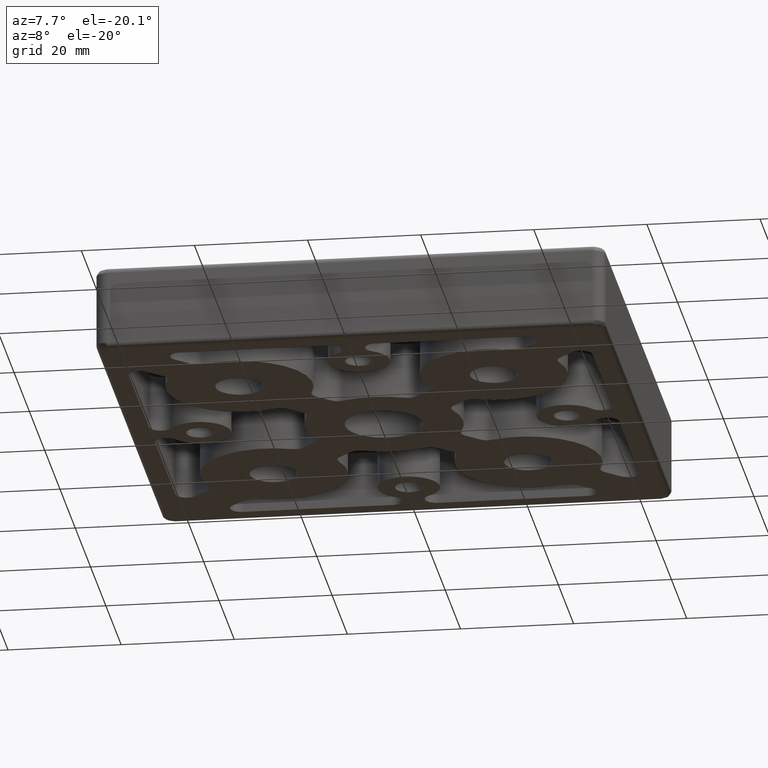
[diagram: clean part render]
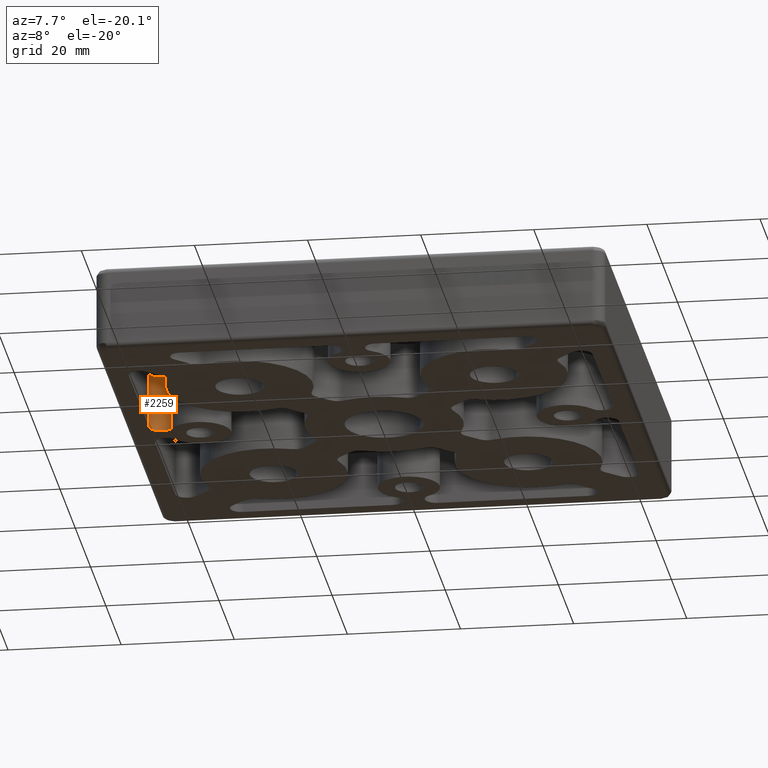
[diagram: same view with one face highlighted and labeled with its STEP entity id]
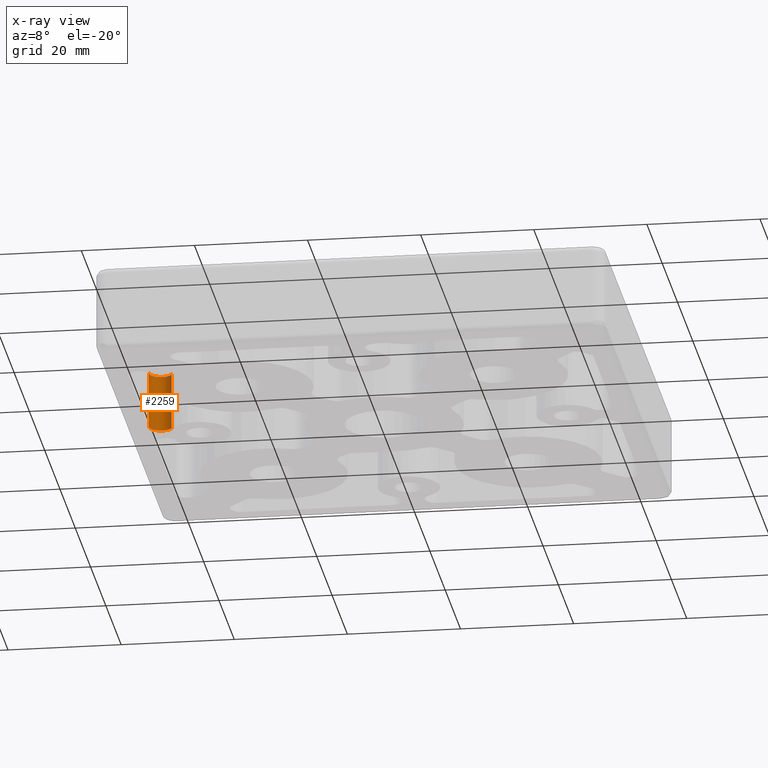
[diagram: x-ray of the same camera — body ghosted, the highlighted face saturated]
A machine part, auxiliary view. The second image highlights one B-rep face of the part: STEP entity #2259.
The next image is the same camera in x-ray: the body ghosted, the highlighted face saturated — about 8% of this face is hidden behind the body in this view.
In plain terms, the highlighted cylindrical surface (edge-blend (fillet) strip) has radius 2.0714 mm, axis along (0, 0, 1).
Its self-contained STEP definition (entity closure, byte-faithful):
#187=FACE_OUTER_BOUND('',#319,.T.);
#319=EDGE_LOOP('',(#1787,#1788,#1789,#1790));
#426=LINE('',#3396,#578);
#537=LINE('',#3816,#689);
#578=VECTOR('',#2641,10.);
#689=VECTOR('',#3090,10.);
#826=CIRCLE('',#2498,2.07142857142857);
#827=CIRCLE('',#2499,2.07142857142857);
#907=VERTEX_POINT('',#3393);
#908=VERTEX_POINT('',#3395);
#1046=VERTEX_POINT('',#3810);
#1048=VERTEX_POINT('',#3814);
#1132=EDGE_CURVE('',#907,#908,#426,.T.);
#1341=EDGE_CURVE('',#1046,#1048,#537,.T.);
#1347=EDGE_CURVE('',#1046,#907,#826,.T.);
#1348=EDGE_CURVE('',#1048,#908,#827,.T.);
#1787=ORIENTED_EDGE('',*,*,#1347,.F.);
#1788=ORIENTED_EDGE('',*,*,#1341,.T.);
#1789=ORIENTED_EDGE('',*,*,#1348,.T.);
#1790=ORIENTED_EDGE('',*,*,#1132,.F.);
#2153=CYLINDRICAL_SURFACE('',#2497,2.07142857142857);
#2259=ADVANCED_FACE('',(#187),#2153,.F.);
#2497=AXIS2_PLACEMENT_3D('',#3826,#3102,#3103);
#2498=AXIS2_PLACEMENT_3D('',#3827,#3104,#3105);
#2499=AXIS2_PLACEMENT_3D('',#3828,#3106,#3107);
#2641=DIRECTION('',(0.,0.,1.));
#3090=DIRECTION('',(0.,0.,1.));
#3102=DIRECTION('center_axis',(0.,0.,1.));
#3103=DIRECTION('ref_axis',(-1.,0.,0.));
#3104=DIRECTION('center_axis',(0.,0.,1.));
#3105=DIRECTION('ref_axis',(-1.,0.,0.));
#3106=DIRECTION('center_axis',(0.,0.,1.));
#3107=DIRECTION('ref_axis',(-1.,0.,0.));
#3393=CARTESIAN_POINT('',(-41.,-4.,-15.));
#3395=CARTESIAN_POINT('',(-41.,-4.,-5.));
#3396=CARTESIAN_POINT('',(-41.,-4.,-15.));
#3810=CARTESIAN_POINT('',(-37.1698113207547,-2.90566037735849,-15.));
#3814=CARTESIAN_POINT('',(-37.1698113207547,-2.90566037735849,-5.));
#3816=CARTESIAN_POINT('',(-37.1698113207547,-2.90566037735849,-15.));
#3826=CARTESIAN_POINT('Origin',(-38.9285714285714,-4.,-15.));
#3827=CARTESIAN_POINT('Origin',(-38.9285714285714,-4.,-15.));
#3828=CARTESIAN_POINT('Origin',(-38.9285714285714,-4.,-5.));